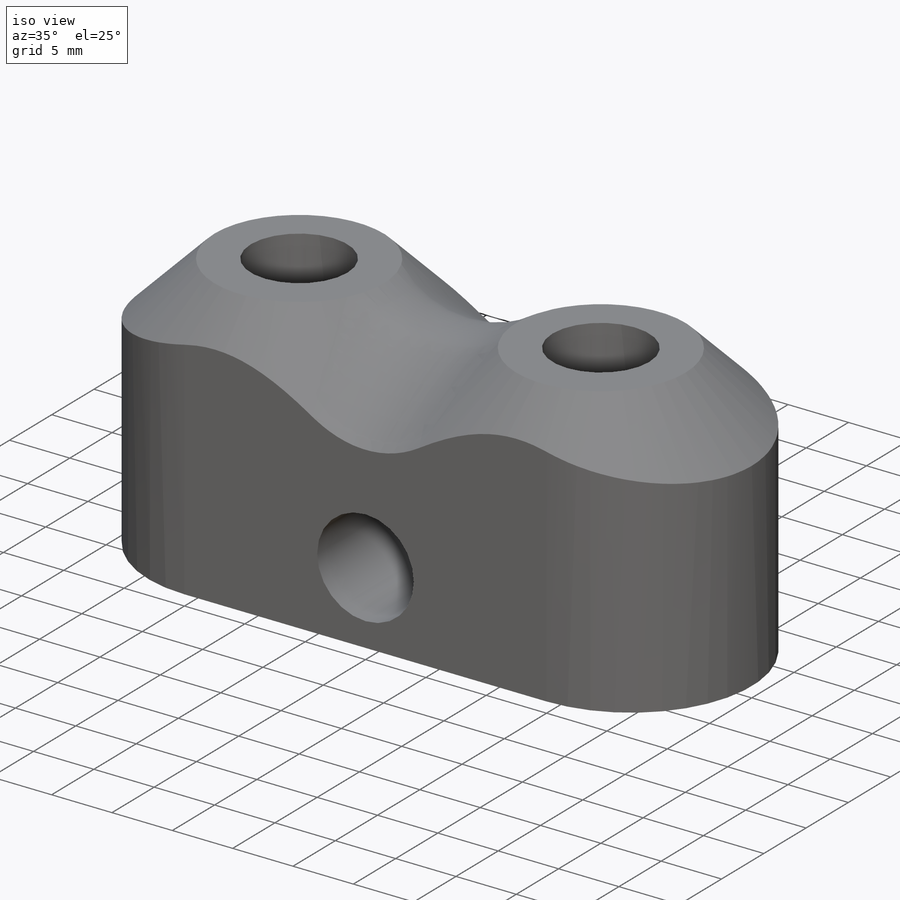
[diagram: iso view]
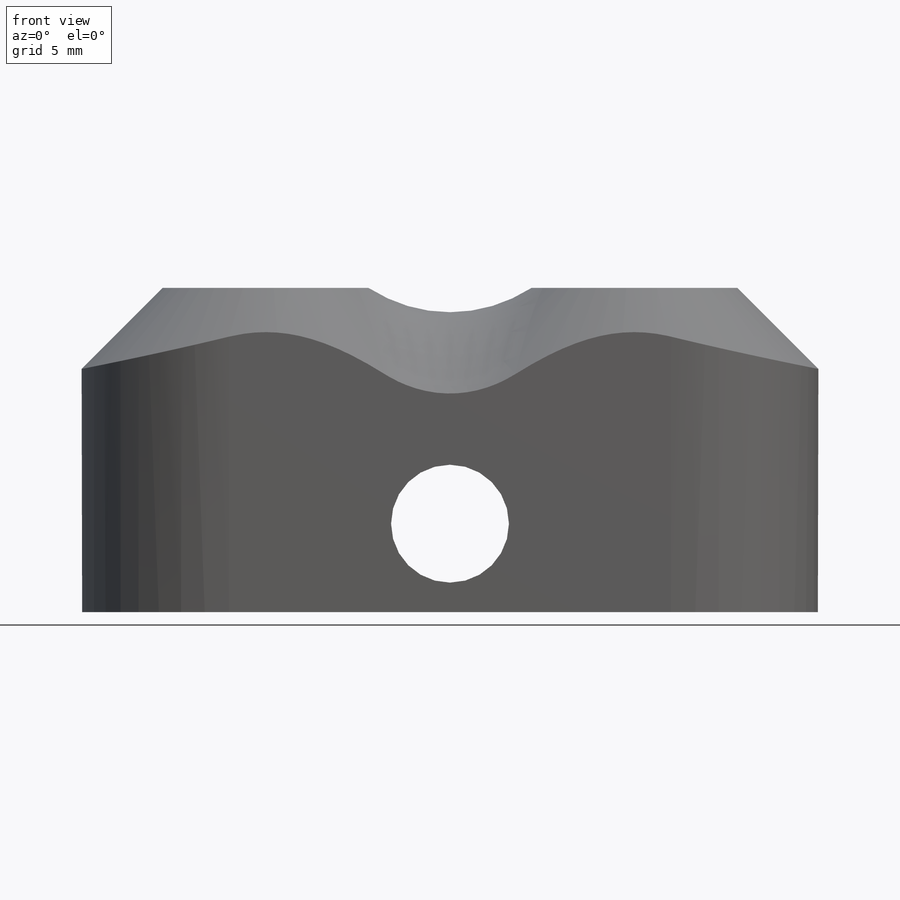
[diagram: front view]
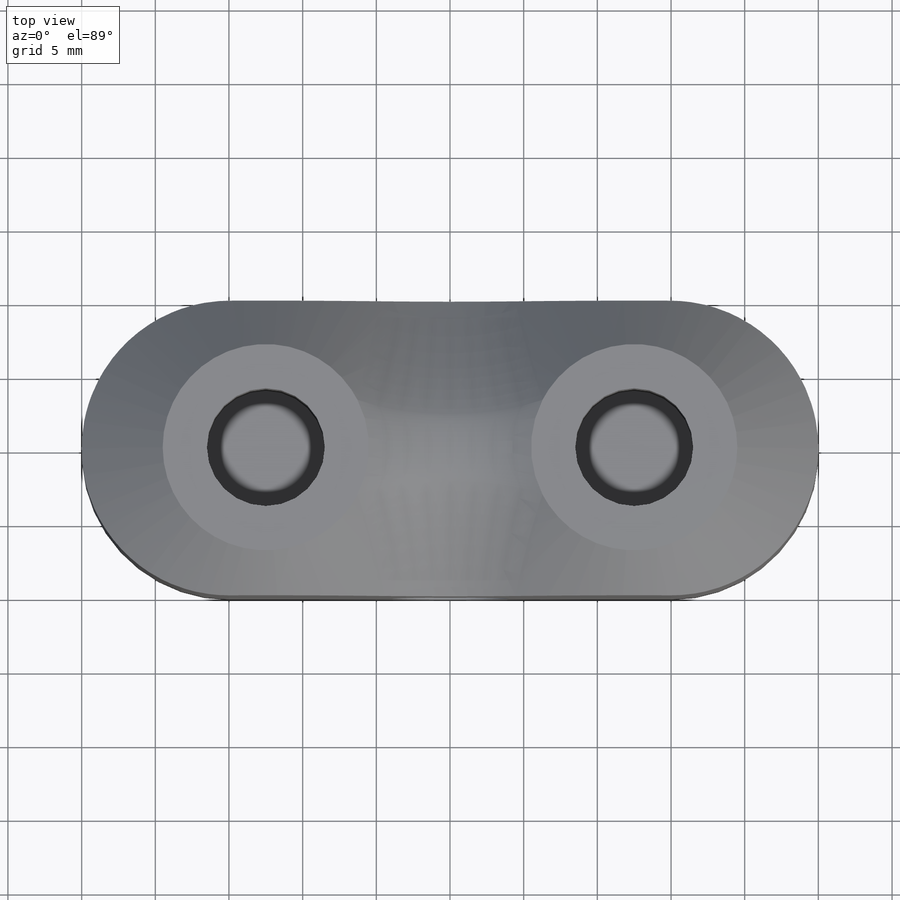
[diagram: top view]
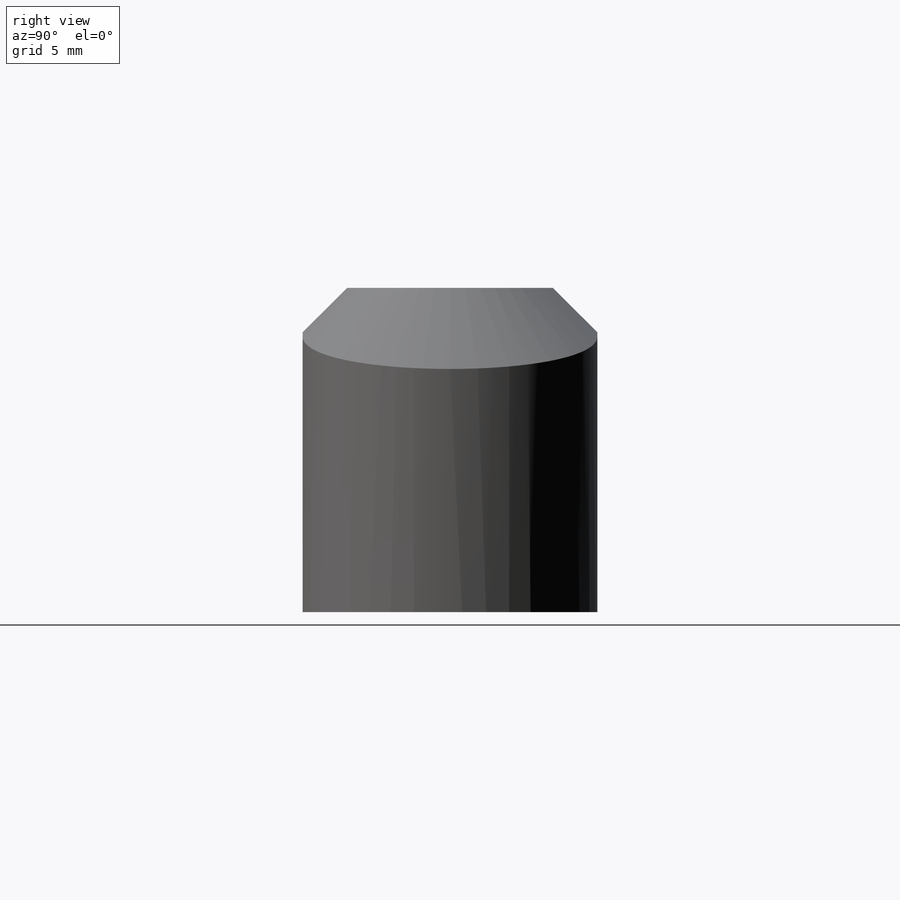
[diagram: right view]
SOLIDWORKS PART (.sldprt)
format: sldprt  version: not decoded by parser v0  size: 284,672 bytes
history: native  units: mm
features: sketch x5, extrude x3, cut_extrude x2, fillet x2, material x1, chamfer x1 (+13 scaffold rows collapsed)
feature tree (27):
  scaffold x13  (default folders/planes/origin — collapsed)
  material  "Material <not specified>"
  sketch  "Sketch1"  dims[c1.D3=~2.384768mm c1.D4=~2.592411mm c1.D1=50.0mm c1.D2=20.0mm c2.D3=12.5mm c2.D4=12.5mm]
  extrude  "Boss-Extrude1"  Depth=10mm
  sketch  "Sketch2"  dims[D1=12.0mm D2=12.0mm]
  cut_extrude  "Cut-Extrude2"  Depth=9mm
  sketch  "Sketch3"
  extrude  "Boss-Extrude2"  Depth=2mm
  chamfer  "Chamfer1"  Distance=10mm Angle=45deg
  fillet  "Fillet1"  Radius=10mm
  fillet  "Fillet2"  Radius=10mm
  sketch  "Sketch6"
  extrude  "Boss-Extrude4"  Depth=10mm
  sketch  "Sketch7"  dims[D1=6.0mm]
  cut_extrude  "Cut-Extrude3"  Depth=100mm
decode coverage: 11 of 13 modeling features carry decoded parameters
note: ~ marks probable driven/reference dimensions
note: suppression state not decoded; provenance and decode notes live in map.json
